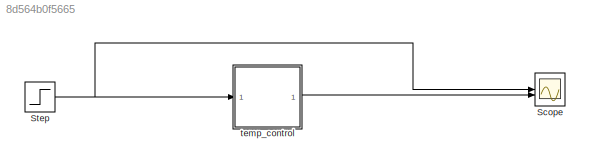
MODEL slx_8d564b0f5665
KIND model
CONFIG AbsTol = auto
CONFIG EnableMultiTasking = off
CONFIG FixedStep = 0.001
CONFIG MaxStep = auto
CONFIG MinStep = auto
CONFIG RelTol = 1e-3
CONFIG SampleTimeConstraint = Unconstrained
CONFIG SolverName = FixedStepAuto
CONFIG StartTime = 0.0
CONFIG StopTime = 10.0
BLOCK [Scope] Scope
  Floating = off
  NumInputPorts = 2
  ScopeSpecificationString = Simulink.scopes.TimeScopeBlockCfg('CurrentConfiguration', extmgr.ConfigurationSet(extmgr.Configuration('Core','General UI',true),extmgr.Configuration('Core','Source UI',true),extmgr.Configuration('Sources','WiredSimulink',true),extmgr.Configuration('Visuals','Time Domain',true,'SerializedDisplays',{struct('MinYLimReal','-15.00000','MaxYLimReal','135.00000','YLabelReal','','MinYLimMag','0.00000','M...<+2038ch>
BLOCK [Step] Step
  After = 120
  SampleTime = 0
  Time = 2
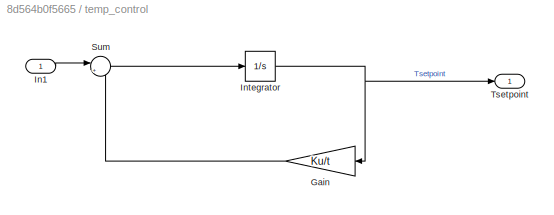
BLOCK [SubSystem] temp_control
BLOCK [Gain] temp_control/Gain
  Gain = Ku/t
  NameLocation = top
BLOCK [Inport] temp_control/In1
BLOCK [Integrator] temp_control/Integrator
BLOCK [Sum] temp_control/Sum
  Inputs = |+-
BLOCK [Outport] temp_control/Tsetpoint
NET Step:1 -> Scope:1, temp_control:1
LINE temp_control/Gain:1 -> temp_control/Sum:2
LINE temp_control/In1:1 -> temp_control/Sum:1
NET temp_control/Integrator:1 -> temp_control/Gain:1, temp_control/Tsetpoint:1
LINE temp_control/Sum:1 -> temp_control/Integrator:1
LINE temp_control:1 -> Scope:2
note: NET lines group one-source signal fan-out (src -> all destinations, sorted); 1:1 wires keep LINE
